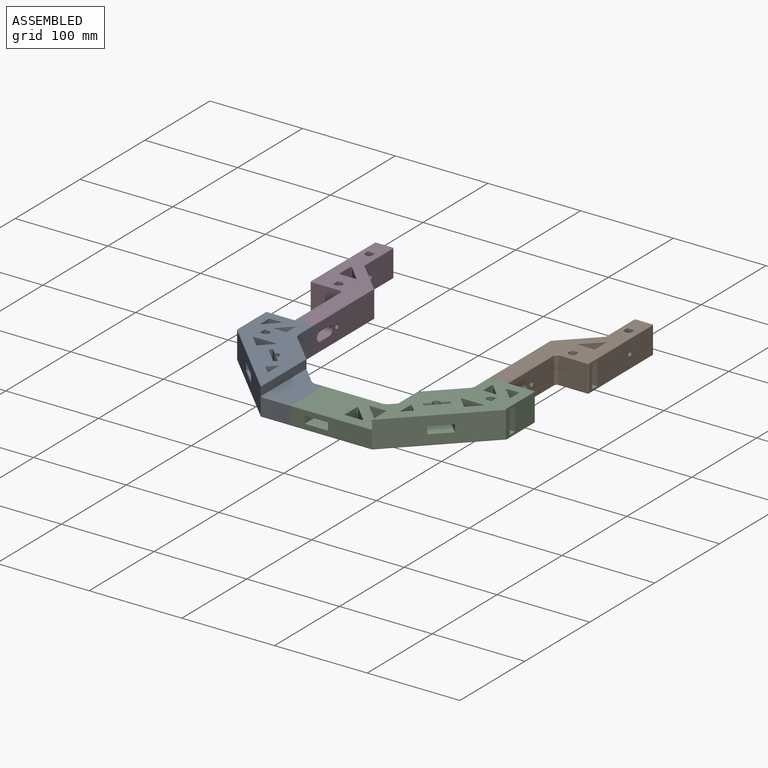
[diagram: assembled view]
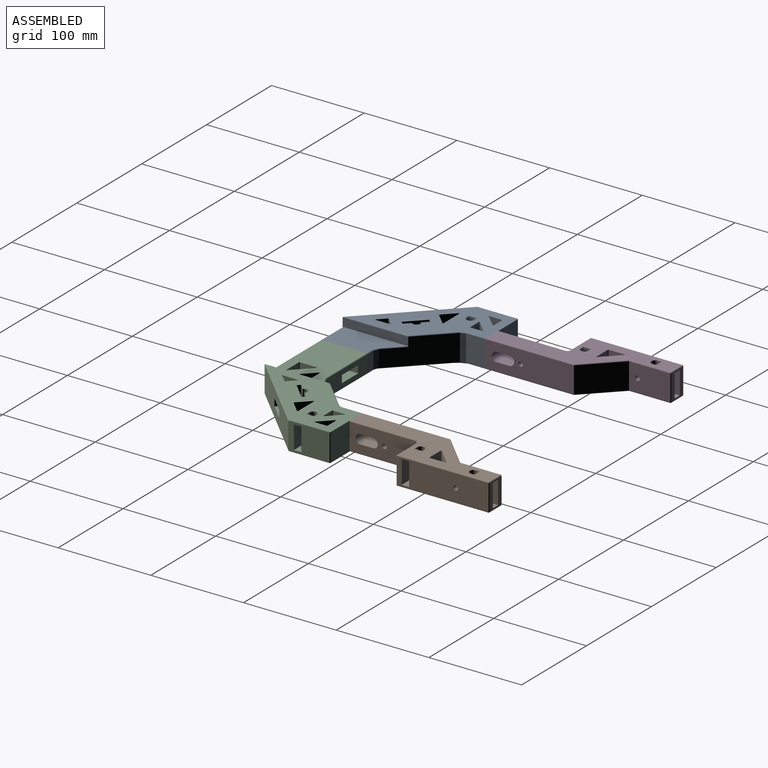
[diagram: assembled view, second angle]
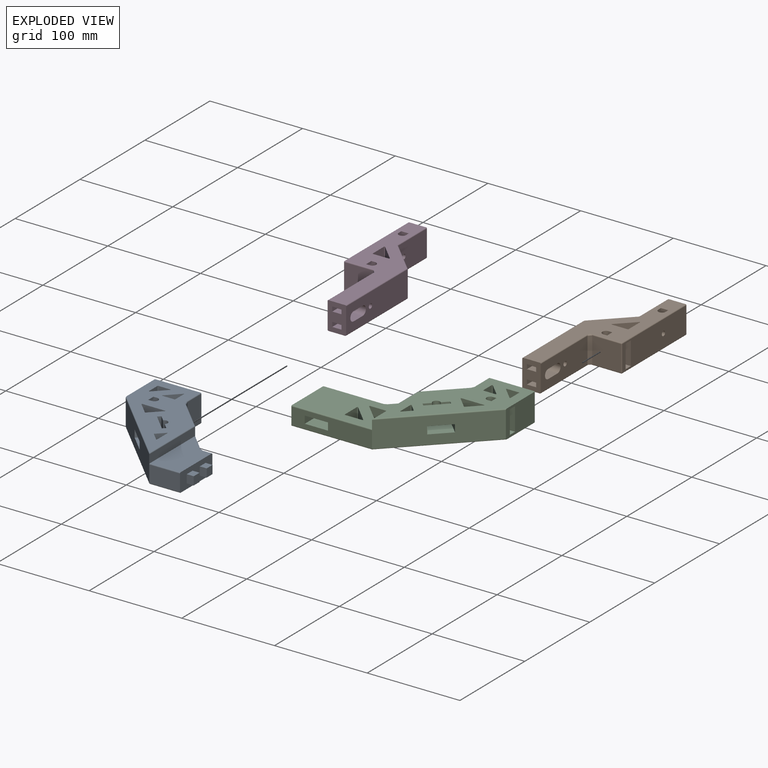
[diagram: exploded view]
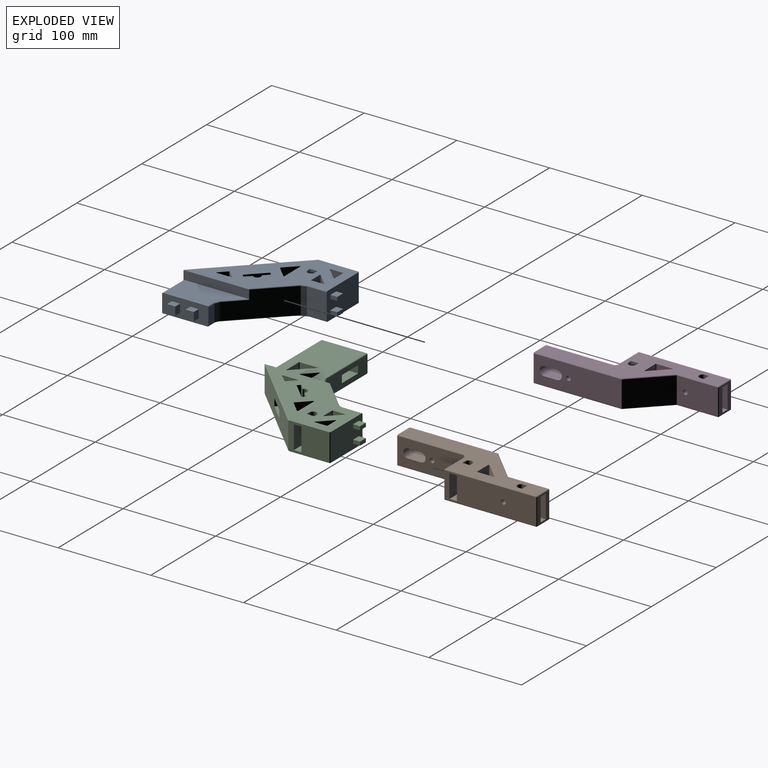
[diagram: exploded view, second angle]
ASSEMBLY  parts=4 mates=3
PART A: 91 faces, bbox 126.6x138x41.1 mm
  f0: plane 50x20mm, normal (1,0,0), area 837.1mm2, adj f1,f2,f3,f4,f5,f6,f7,f23
  f1: plane 129.12x118.06mm, normal (0,0,-1), area 7108.4mm2, adj f0,f4,f6,f9,f19,f34,f35,f43
  f2: plane 18x9.35mm, normal (0,1,0), area 168.3mm2, adj f0,f4,f5,f48
  f3: plane 33.06x18mm, normal (0,-1,0), area 595.1mm2, adj f0,f6,f7,f20
  f4: cylinder r=1mm len=12.76mm, axis (1,0,0), area 16.6mm2, adj f0,f1,f2,f47
  f5: cylinder r=1mm len=12.76mm, axis (1,0,0), area 16.6mm2, adj f0,f2,f23,f49
  f6: cylinder r=1mm len=33.06mm, axis (-1,0,0), area 51.6mm2, adj f0,f1,f3,f43
  f7: cylinder r=1mm len=33.06mm, axis (-1,0,0), area 51.9mm2, adj f0,f3,f22,f23
  f8: plane 127.65x83.94mm, normal (0,0,1), area 5047.2mm2, adj f9,f12,f14,f15,f17,f19,f34,f36
  f9: plane 49x30mm, normal (0,1,0), area 1397.6mm2, adj f1,f8,f10,f24,f25,f26,f27,f29
  f10: plane 28x21.41mm, normal (1,0,0), area 599.5mm2, adj f9,f36,f45,f68
  f11: plane 20x8mm, normal (0,0,-1), area 160mm2, adj f12,f14,f19,f62
  f12: plane 27.5x24mm, normal (0,1,0), area 610mm2, adj f8,f11,f13,f19,f62,f63
  f13: plane 28x8mm, normal (0,0,1), area 217.1mm2, adj f12,f14,f19,f63
  f14: plane 27.5x24mm, normal (0,-1,0), area 610mm2, adj f8,f11,f13,f19,f62,f63
  f15: plane 19x16.97mm, normal (-0.71,0.71,0), area 236mm2, adj f8,f16,f18,f20,f64,f67
  f16: plane 34.65x34.65mm, normal (0,0,1), area 625.1mm2, adj f15,f17,f20,f65,f66,f67
  f17: plane 19x16.97mm, normal (0.71,-0.71,0), area 236mm2, adj f8,f16,f18,f20,f64,f65
  f18: plane 31.82x31.82mm, normal (0,0,-1), area 500mm2, adj f15,f17,f20,f64
  f19: plane 44.54x30.42mm, normal (-1,0,0), area 1123.1mm2, adj f1,f8,f11,f12,f13,f14,f20,f34
  f20: plane 84.94x84.94mm, normal (-0.71,-0.71,0), area 3163.4mm2, adj f3,f15,f16,f17,f18,f19,f22,f37
  f21: plane 51.41x51.41mm, normal (0.71,0.71,0), area 1768.6mm2, adj f35,f38,f41,f42,f45,f48
  f22: plane 70.36x10.06mm, normal (1,0,0), area 633mm2, adj f7,f20,f23,f39,f41,f42
  f23: plane 68.3x33.06mm, normal (0,0,1), area 1792.9mm2, adj f0,f5,f7,f22,f42
  f24: plane 9x7.5mm, normal (0,0,1), area 67.5mm2, adj f9,f25,f27,f28
  f25: plane 7.5x4mm, normal (-1,0,0), area 30mm2, adj f9,f24,f26,f28
  f26: plane 9x7.5mm, normal (0,0,-1), area 67.5mm2, adj f9,f25,f27,f28
  f27: plane 7.5x4mm, normal (1,0,0), area 30mm2, adj f9,f24,f26,f28
  f28: plane 9x4mm, normal (0,1,0), area 36mm2, adj f24,f25,f26,f27
  f29: plane 9x7.5mm, normal (0,0,1), area 67.5mm2, adj f9,f30,f32,f33
  f30: plane 7.5x4mm, normal (-1,0,0), area 30mm2, adj f9,f29,f31,f33
  f31: plane 9x7.5mm, normal (0,0,-1), area 67.5mm2, adj f9,f30,f32,f33
  f32: plane 7.5x4mm, normal (1,0,0), area 30mm2, adj f9,f29,f31,f33
  f33: plane 9x4mm, normal (0,1,0), area 36mm2, adj f29,f30,f31,f32
  f34: cylinder r=1mm len=30mm, axis (0,0,-1), area 47.1mm2, adj f1,f8,f9,f19
  f35: cylinder r=1mm len=54.53mm, axis (0.71,-0.71,0), area 110.4mm2, adj f1,f21,f44,f47
  f36: cylinder r=1mm len=24.83mm, axis (0,1,0), area 35.6mm2, adj f8,f9,f10,f46
  f37: cylinder r=1mm len=86.35mm, axis (0.71,-0.71,0), area 187.6mm2, adj f8,f19,f20,f39
  f38: cylinder r=1mm len=35.65mm, axis (-0.71,0.71,0), area 74.2mm2, adj f8,f21,f40,f46
  f39: cylinder r=1mm len=70.3mm, axis (0,-1,0), area 108.5mm2, adj f8,f22,f37,f40
  f40: sphere r=1mm, area 0.8mm2, adj f38,f39,f41
  f41: cylinder r=1mm len=10mm, axis (0,0,-1), area 7.6mm2, adj f21,f22,f40,f42
  f42: cylinder r=1mm len=22mm, axis (0.71,-0.71,0), area 42.8mm2, adj f21,f22,f23,f41,f49
  f43: cylinder r=1mm len=86.35mm, axis (-0.71,0.71,0), area 189.1mm2, adj f1,f6,f19,f20
  f44: bspline ~15.15x11.72mm, area 8.8mm2, adj f1,f35,f45,f68
  f45: plane 28x5.12mm, normal (0.92,0.38,0), area 155.2mm2, adj f10,f21,f44,f46
  f46: bspline ~5.13x3.12mm, area 8.2mm2, adj f36,f38,f45
  f47: bspline ~5.13x3.12mm, area 8.2mm2, adj f4,f35,f48
  f48: plane 18x5.12mm, normal (0.38,0.92,0), area 99.8mm2, adj f2,f21,f47,f49
  f49: bspline ~5.13x3.12mm, area 8.2mm2, adj f5,f42,f48
  f50: plane 30x25.08mm, normal (0,-1,0), area 752.4mm2, adj f1,f8,f86,f90
  f51: plane 30x12.54mm, normal (-0.71,0.71,0), area 532mm2, adj f1,f8,f88,f90
  f52: plane 30x12.54mm, normal (0.71,0.71,0), area 532mm2, adj f1,f8,f86,f88
  f53: plane 30x13.44mm, normal (-1,0,0), area 403.3mm2, adj f1,f8,f79,f83
  f54: plane 30x13.44mm, normal (0,1,0), area 403.3mm2, adj f1,f8,f83,f84
  f55: plane 30x13.44mm, normal (0.71,-0.71,0), area 570.4mm2, adj f1,f8,f79,f84
  f56: plane 30x13.41mm, normal (0,-1,0), area 402.3mm2, adj f1,f8,f81,f82
  f57: plane 30x13.41mm, normal (-0.71,0.71,0), area 569mm2, adj f1,f8,f80,f82
  f58: plane 30x13.41mm, normal (1,0,0), area 402.3mm2, adj f1,f8,f80,f81
  f59: plane 30x16.31mm, normal (-1,0,0), area 489.2mm2, adj f1,f8,f85,f89
  f60: plane 30x8.15mm, normal (0.71,0.71,0), area 345.9mm2, adj f1,f8,f87,f89
  f61: plane 30x8.15mm, normal (0.71,-0.71,0), area 345.9mm2, adj f1,f8,f85,f87
  f62: plane 8x2.5mm, normal (1,0,0), area 20mm2, adj f8,f11,f12,f14
  f63: cylinder r=4mm len=27.5mm, axis (0,0,1), area 345.6mm2, adj f8,f12,f13,f14
  f64: plane 17.68x17.68mm, normal (0.71,0.71,0), area 275mm2, adj f8,f15,f17,f18
  f65: plane 19x6.01mm, normal (-0.71,-0.71,0), area 161.5mm2, adj f8,f16,f17,f66
  f66: cylinder r=4mm len=19mm, axis (0,0,1), area 238.8mm2, adj f8,f16,f65,f67
  f67: plane 19x6.01mm, normal (-0.71,-0.71,0), area 161.5mm2, adj f8,f15,f16,f66
  f68: cylinder r=1mm len=21.41mm, axis (0,-1,0), area 31.8mm2, adj f1,f9,f10,f44
  f69: plane 9x7.5mm, normal (0,0,1), area 67.5mm2, adj f0,f70,f72,f73
  f70: plane 9x7.5mm, normal (0,-1,0), area 67.5mm2, adj f0,f69,f71,f73
  f71: plane 9x7.5mm, normal (0,0,-1), area 67.5mm2, adj f0,f70,f72,f73
  f72: plane 9x7.5mm, normal (0,1,0), area 67.5mm2, adj f0,f69,f71,f73
  f73: plane 9x9mm, normal (1,0,0), area 81mm2, adj f69,f70,f71,f72
  f74: plane 9x7.5mm, normal (0,0,1), area 67.5mm2, adj f0,f75,f77,f78
  f75: plane 9x7.5mm, normal (0,-1,0), area 67.5mm2, adj f0,f74,f76,f78
  f76: plane 9x7.5mm, normal (0,0,-1), area 67.5mm2, adj f0,f75,f77,f78
  f77: plane 9x7.5mm, normal (0,1,0), area 67.5mm2, adj f0,f74,f76,f78
  f78: plane 9x9mm, normal (1,0,0), area 81mm2, adj f74,f75,f76,f77
  f79: plane 30x0.71mm, normal (-0.38,-0.92,0), area 23mm2, adj f1,f8,f53,f55
  f80: plane 30x0.71mm, normal (0.38,0.92,0), area 23mm2, adj f1,f8,f57,f58
  f81: plane 30x0.41mm, normal (0.71,-0.71,0), area 17.6mm2, adj f1,f8,f56,f58
  f82: plane 30x0.71mm, normal (-0.92,-0.38,0), area 23mm2, adj f1,f8,f56,f57
  f83: plane 30x0.41mm, normal (-0.71,0.71,0), area 17.6mm2, adj f1,f8,f53,f54
  f84: plane 30x0.71mm, normal (0.92,0.38,0), area 23mm2, adj f1,f8,f54,f55
  f85: plane 30x0.71mm, normal (-0.38,-0.92,0), area 23mm2, adj f1,f8,f59,f61
  f86: plane 30x0.71mm, normal (0.92,-0.38,0), area 23mm2, adj f1,f8,f50,f52
  f87: plane 30x0.59mm, normal (1,0,0), area 17.6mm2, adj f1,f8,f60,f61
  f88: plane 30x0.59mm, normal (0,1,0), area 17.6mm2, adj f1,f8,f51,f52
  f89: plane 30x0.71mm, normal (-0.38,0.92,0), area 23mm2, adj f1,f8,f59,f60
  f90: plane 30x0.71mm, normal (-0.92,-0.38,0), area 23mm2, adj f1,f8,f50,f51
PART B: 73 faces, bbox 55x175x30 mm
  f0: plane 28x18mm, normal (0,1,0), area 304mm2, adj f29,f31,f39,f40,f41,f42,f48,f60
  f1: plane 98.22x28mm, normal (1,0,0), area 2530.4mm2, adj f30,f31,f32,f33,f34,f35,f38,f50
  f2: plane 30x20mm, normal (0,-1,0), area 499.1mm2, adj f3,f4,f5,f6,f12,f13,f14,f15
  f3: plane 71.92x28mm, normal (1,0,0), area 1775.6mm2, adj f2,f7,f8,f9,f10,f11,f52,f54
  f4: plane 94.59x28mm, normal (-1,0,0), area 2410.2mm2, adj f2,f7,f8,f9,f10,f11,f28,f43
  f5: plane 174x53mm, normal (0,0,1), area 4103mm2, adj f2,f25,f26,f27,f33,f35,f36,f37
  f6: plane 174x53mm, normal (0,0,-1), area 4217.3mm2, adj f2,f25,f26,f27,f54,f55,f57,f59
  f7: cylinder r=5mm len=20mm, axis (1,0,0), area 314.2mm2, adj f3,f4,f8,f10
  f8: plane 20x14mm, normal (0,0,-1), area 280mm2, adj f3,f4,f7,f9
  f9: cylinder r=5mm len=20mm, axis (1,0,0), area 314.2mm2, adj f3,f4,f8,f10
  f10: plane 20x14mm, normal (0,0,1), area 280mm2, adj f3,f4,f7,f9
  f11: cylinder r=2.5mm len=20mm, axis (1,0,0), area 314.2mm2, adj f3,f4
  f12: plane 10x8mm, normal (0,0,-1), area 80mm2, adj f2,f13,f15,f16
  f13: plane 8x5mm, normal (-1,0,0), area 40mm2, adj f2,f12,f14,f16
  f14: plane 10x8mm, normal (0,0,1), area 80mm2, adj f2,f13,f15,f16
  f15: plane 8x5mm, normal (1,0,0), area 40mm2, adj f2,f12,f14,f16
  f16: plane 10x5mm, normal (0,-1,0), area 50mm2, adj f12,f13,f14,f15
  f17: plane 10x8mm, normal (0,0,-1), area 80mm2, adj f2,f18,f20,f21
  f18: plane 8x5mm, normal (-1,0,0), area 40mm2, adj f2,f17,f19,f21
  f19: plane 10x8mm, normal (0,0,1), area 80mm2, adj f2,f18,f20,f21
  f20: plane 8x5mm, normal (1,0,0), area 40mm2, adj f2,f17,f19,f21
  f21: plane 10x5mm, normal (0,-1,0), area 50mm2, adj f17,f18,f19,f20
  f22: plane 44x28mm, normal (-1,0,0), area 1212.4mm2, adj f24,f29,f38,f46,f64
  f23: plane 31x28mm, normal (0,-1,0), area 867.9mm2, adj f30,f53,f55,f66
  f24: plane 34.71x34.71mm, normal (-0.71,0.71,0), area 1374.3mm2, adj f22,f28,f45,f63
  f25: plane 30x17.71mm, normal (0.71,-0.71,0), area 751.2mm2, adj f5,f6,f70,f72
  f26: plane 30x17.78mm, normal (-1,0,0), area 533.3mm2, adj f5,f6,f70,f71
  f27: plane 30x17.71mm, normal (0,1,0), area 531.2mm2, adj f5,f6,f71,f72
  f28: cylinder r=1mm len=28mm, axis (0,0,1), area 22mm2, adj f4,f24,f44,f61
  f29: cylinder r=1mm len=28mm, axis (0,0,-1), area 44mm2, adj f0,f22,f47,f62
  f30: cylinder r=1mm len=28mm, axis (0,0,-1), area 44.1mm2, adj f1,f23,f51,f56
  f31: cylinder r=1mm len=28mm, axis (0,0,1), area 44mm2, adj f0,f1,f49,f58
  f32: plane 20x8mm, normal (0,0,-1), area 160mm2, adj f1,f33,f35,f36
  f33: plane 27.5x24mm, normal (0,-1,0), area 610mm2, adj f1,f5,f32,f34,f36,f37
  f34: plane 28x8mm, normal (0,0,1), area 217.1mm2, adj f1,f33,f35,f37
  f35: plane 27.5x24mm, normal (0,1,0), area 610mm2, adj f1,f5,f32,f34,f36,f37
  f36: plane 8x2.5mm, normal (-1,0,0), area 20mm2, adj f5,f32,f33,f35
  f37: cylinder r=4mm len=27.5mm, axis (0,0,1), area 345.6mm2, adj f5,f33,f34,f35
  f38: cylinder r=2.5mm len=20mm, axis (1,0,0), area 314.2mm2, adj f1,f22
  f39: plane 20x8mm, normal (0,0,-1), area 160mm2, adj f0,f40,f42,f68
  f40: plane 27.5x24mm, normal (1,0,0), area 610mm2, adj f0,f5,f39,f41,f68,f69
  f41: plane 28x8mm, normal (0,0,1), area 217.1mm2, adj f0,f40,f42,f69
  f42: plane 27.5x24mm, normal (-1,0,0), area 610mm2, adj f0,f5,f39,f41,f68,f69
  f43: cylinder r=1mm len=94.59mm, axis (0,-1,0), area 148.6mm2, adj f2,f4,f5,f44
  f44: sphere r=1mm, area 0.8mm2, adj f28,f43,f45
  f45: cylinder r=1mm len=35.71mm, axis (0.71,0.71,0), area 77.4mm2, adj f5,f24,f44,f46
  f46: cylinder r=1mm len=44.41mm, axis (0,1,0), area 69.4mm2, adj f5,f22,f45,f47
  f47: sphere r=1mm, area 1.6mm2, adj f29,f46,f48
  f48: cylinder r=1mm len=18mm, axis (1,0,0), area 28.3mm2, adj f0,f5,f47,f49
  f49: sphere r=1mm, area 1.6mm2, adj f31,f48,f50
  f50: cylinder r=1mm len=98.22mm, axis (0,-1,0), area 154.3mm2, adj f1,f5,f49,f51
  f51: sphere r=1mm, area 2.1mm2, adj f30,f50,f53
  f52: cylinder r=1mm len=75.92mm, axis (0,-1,0), area 115.3mm2, adj f2,f3,f5,f65
  f53: cylinder r=1mm len=35mm, axis (-1,0,0), area 51mm2, adj f5,f23,f51,f65
  f54: cylinder r=1mm len=75.92mm, axis (0,-1,0), area 115.3mm2, adj f2,f3,f6,f67
  f55: cylinder r=1mm len=35mm, axis (-1,0,0), area 51mm2, adj f6,f23,f56,f67
  f56: sphere r=1mm, area 2.1mm2, adj f30,f55,f57
  f57: cylinder r=1mm len=98.22mm, axis (0,-1,0), area 154.3mm2, adj f1,f6,f56,f58
  f58: sphere r=1mm, area 1.6mm2, adj f31,f57,f60
  f59: cylinder r=1mm len=94.59mm, axis (0,1,0), area 148.6mm2, adj f2,f4,f6,f61
  f60: cylinder r=1mm len=18mm, axis (1,0,0), area 28.3mm2, adj f0,f6,f58,f62
  f61: sphere r=1mm, area 0.8mm2, adj f28,f59,f63
  f62: sphere r=1mm, area 1.6mm2, adj f29,f60,f64
  f63: cylinder r=1mm len=35.71mm, axis (0.71,0.71,0), area 77.4mm2, adj f6,f24,f61,f64
  f64: cylinder r=1mm len=44.41mm, axis (0,1,0), area 69.4mm2, adj f6,f22,f62,f63
  f65: bspline ~4.01x4mm, area 4.7mm2, adj f52,f53,f66
  f66: plane 28x3mm, normal (0.71,-0.71,0), area 118.6mm2, adj f3,f23,f65,f67
  f67: bspline ~4.01x4mm, area 4.7mm2, adj f54,f55,f66
  f68: plane 8x2.5mm, normal (0,-1,0), area 20mm2, adj f5,f39,f40,f42
  f69: cylinder r=4mm len=27.5mm, axis (0,0,1), area 345.6mm2, adj f5,f40,f41,f42
  f70: plane 30x0.71mm, normal (-0.38,-0.92,0), area 23.1mm2, adj f5,f6,f25,f26
  f71: plane 30x0.42mm, normal (-0.71,0.71,0), area 17.7mm2, adj f5,f6,f26,f27
  f72: plane 30x0.71mm, normal (0.92,0.38,0), area 23.1mm2, adj f5,f6,f25,f27
PART C: 107 faces, bbox 173.1x138x41 mm
  f0: plane 172.06x129.12mm, normal (0,0,-1), area 9276mm2, adj f2,f6,f8,f10,f20,f38,f39,f47
  f1: plane 87.06x68.3mm, normal (0,0,1), area 3957.6mm2, adj f2,f7,f9,f23,f46,f83,f84,f85
  f2: plane 50x20mm, normal (-1,0,0), area 799.1mm2, adj f0,f1,f4,f5,f6,f7,f8,f9
  f3: plane 127.65x83.94mm, normal (0,0,1), area 5047.2mm2, adj f10,f13,f15,f16,f18,f20,f38,f40
  f4: plane 63.35x18mm, normal (0,1,0), area 940.3mm2, adj f2,f6,f7,f24,f25,f26,f27,f52
  f5: plane 87.06x18mm, normal (0,-1,0), area 1367.1mm2, adj f2,f8,f9,f21,f24,f25,f26,f27
  f6: cylinder r=1mm len=66.76mm, axis (-1,0,0), area 101.5mm2, adj f0,f2,f4,f51
  f7: cylinder r=1mm len=66.76mm, axis (-1,0,0), area 101.5mm2, adj f1,f2,f4,f53
  f8: cylinder r=1mm len=87.06mm, axis (1,0,0), area 136.4mm2, adj f0,f2,f5,f47
  f9: cylinder r=1mm len=87.06mm, axis (1,0,0), area 136.8mm2, adj f1,f2,f5,f23
  f10: plane 49x30mm, normal (0,1,0), area 1397.6mm2, adj f0,f3,f11,f28,f29,f30,f31,f33
  f11: plane 28x21.41mm, normal (-1,0,0), area 599.5mm2, adj f10,f40,f49,f72
  f12: plane 20x8mm, normal (0,0,-1), area 160mm2, adj f13,f15,f20,f66
  f13: plane 27.5x24mm, normal (0,1,0), area 610mm2, adj f3,f12,f14,f20,f66,f67
  f14: plane 28x8mm, normal (0,0,1), area 217.1mm2, adj f13,f15,f20,f67
  f15: plane 27.5x24mm, normal (0,-1,0), area 610mm2, adj f3,f12,f14,f20,f66,f67
  f16: plane 19x16.97mm, normal (0.71,0.71,0), area 236mm2, adj f3,f17,f19,f21,f68,f71
  f17: plane 34.65x34.65mm, normal (0,0,1), area 625.1mm2, adj f16,f18,f21,f69,f70,f71
  f18: plane 19x16.97mm, normal (-0.71,-0.71,0), area 236mm2, adj f3,f17,f19,f21,f68,f69
  f19: plane 31.82x31.82mm, normal (0,0,-1), area 500mm2, adj f16,f18,f21,f68
  f20: plane 44.54x30.42mm, normal (1,0,0), area 1123.1mm2, adj f0,f3,f12,f13,f14,f15,f21,f38
  f21: plane 84.94x84.94mm, normal (0.71,-0.71,0), area 3163.4mm2, adj f5,f16,f17,f18,f19,f20,f23,f41
  f22: plane 51.41x51.41mm, normal (-0.71,0.71,0), area 1768.6mm2, adj f39,f42,f45,f46,f49,f52
  f23: plane 70.36x10.06mm, normal (-1,0,0), area 633mm2, adj f1,f9,f21,f43,f45,f46
  f24: plane 50x8mm, normal (-1,0,0), area 400mm2, adj f4,f5,f25,f26
  f25: plane 50x25mm, normal (0,0,-1), area 1250mm2, adj f4,f5,f24,f27
  f26: plane 50x25mm, normal (0,0,1), area 1250mm2, adj f4,f5,f24,f27
  f27: plane 50x8mm, normal (1,0,0), area 400mm2, adj f4,f5,f25,f26
  f28: plane 9x7.5mm, normal (0,0,1), area 67.5mm2, adj f10,f29,f31,f32
  f29: plane 7.5x4mm, normal (1,0,0), area 30mm2, adj f10,f28,f30,f32
  f30: plane 9x7.5mm, normal (0,0,-1), area 67.5mm2, adj f10,f29,f31,f32
  f31: plane 7.5x4mm, normal (-1,0,0), area 30mm2, adj f10,f28,f30,f32
  f32: plane 9x4mm, normal (0,1,0), area 36mm2, adj f28,f29,f30,f31
  f33: plane 9x7.5mm, normal (0,0,1), area 67.5mm2, adj f10,f34,f36,f37
  f34: plane 7.5x4mm, normal (1,0,0), area 30mm2, adj f10,f33,f35,f37
  f35: plane 9x7.5mm, normal (0,0,-1), area 67.5mm2, adj f10,f34,f36,f37
  f36: plane 7.5x4mm, normal (-1,0,0), area 30mm2, adj f10,f33,f35,f37
  f37: plane 9x4mm, normal (0,1,0), area 36mm2, adj f33,f34,f35,f36
  f38: cylinder r=1mm len=30mm, axis (0,0,-1), area 47.1mm2, adj f0,f3,f10,f20
  f39: cylinder r=1mm len=54.53mm, axis (-0.71,-0.71,0), area 110.4mm2, adj f0,f22,f48,f51
  f40: cylinder r=1mm len=24.83mm, axis (0,1,0), area 35.6mm2, adj f3,f10,f11,f50
  f41: cylinder r=1mm len=86.35mm, axis (-0.71,-0.71,0), area 187.6mm2, adj f3,f20,f21,f43
  f42: cylinder r=1mm len=35.65mm, axis (0.71,0.71,0), area 74.2mm2, adj f3,f22,f44,f50
  f43: cylinder r=1mm len=70.3mm, axis (0,-1,0), area 108.5mm2, adj f3,f23,f41,f44
  f44: sphere r=1mm, area 0.8mm2, adj f42,f43,f45
  f45: cylinder r=1mm len=10mm, axis (0,0,-1), area 7.6mm2, adj f22,f23,f44,f46
  f46: cylinder r=1mm len=22mm, axis (-0.71,-0.71,0), area 42.8mm2, adj f1,f22,f23,f45,f53
  f47: cylinder r=1mm len=86.35mm, axis (0.71,0.71,0), area 189.1mm2, adj f0,f8,f20,f21
  f48: bspline ~14.05x11.63mm, area 8.8mm2, adj f0,f39,f49,f72
  f49: plane 28x5.12mm, normal (-0.92,0.38,0), area 155.2mm2, adj f11,f22,f48,f50
  f50: bspline ~5.13x3.12mm, area 8.2mm2, adj f40,f42,f49
  f51: bspline ~5.13x3.12mm, area 8.2mm2, adj f6,f39,f52
  f52: plane 18x5.12mm, normal (-0.38,0.92,0), area 99.8mm2, adj f4,f22,f51,f53
  f53: bspline ~5.13x3.12mm, area 8.2mm2, adj f7,f46,f52
  f54: plane 30x25.08mm, normal (0,-1,0), area 752.4mm2, adj f0,f3,f96,f101
  f55: plane 30x12.54mm, normal (0.71,0.71,0), area 532mm2, adj f0,f3,f96,f98
  f56: plane 30x12.54mm, normal (-0.71,0.71,0), area 532mm2, adj f0,f3,f98,f101
  f57: plane 30x13.44mm, normal (1,0,0), area 403.3mm2, adj f0,f3,f90,f92
  f58: plane 30x13.44mm, normal (0,1,0), area 403.3mm2, adj f0,f3,f89,f92
  f59: plane 30x13.44mm, normal (-0.71,-0.71,0), area 570.4mm2, adj f0,f3,f89,f90
  f60: plane 30x13.41mm, normal (0,-1,0), area 402.3mm2, adj f0,f3,f91,f94
  f61: plane 30x13.41mm, normal (0.71,0.71,0), area 569mm2, adj f0,f3,f91,f93
  f62: plane 30x13.41mm, normal (-1,0,0), area 402.3mm2, adj f0,f3,f93,f94
  f63: plane 30x16.31mm, normal (1,0,0), area 489.2mm2, adj f0,f3,f95,f102
  f64: plane 30x8.15mm, normal (-0.71,0.71,0), area 345.9mm2, adj f0,f3,f95,f97
  f65: plane 30x8.15mm, normal (-0.71,-0.71,0), area 345.9mm2, adj f0,f3,f97,f102
  f66: plane 8x2.5mm, normal (-1,0,0), area 20mm2, adj f3,f12,f13,f15
  f67: cylinder r=4mm len=27.5mm, axis (0,0,1), area 345.6mm2, adj f3,f13,f14,f15
  f68: plane 17.68x17.68mm, normal (-0.71,0.71,0), area 275mm2, adj f3,f16,f18,f19
  f69: plane 19x6.01mm, normal (0.71,-0.71,0), area 161.5mm2, adj f3,f17,f18,f70
  f70: cylinder r=4mm len=19mm, axis (0,0,1), area 238.8mm2, adj f3,f17,f69,f71
  f71: plane 19x6.01mm, normal (0.71,-0.71,0), area 161.5mm2, adj f3,f16,f17,f70
  f72: cylinder r=1mm len=21.41mm, axis (0,-1,0), area 31.8mm2, adj f0,f10,f11,f48
  f73: plane 10x8mm, normal (0,0,-1), area 80mm2, adj f2,f74,f76,f77
  f74: plane 10x8mm, normal (0,-1,0), area 80mm2, adj f2,f73,f75,f77
  f75: plane 10x8mm, normal (0,0,1), area 80mm2, adj f2,f74,f76,f77
  f76: plane 10x8mm, normal (0,1,0), area 80mm2, adj f2,f73,f75,f77
  f77: plane 10x10mm, normal (-1,0,0), area 100mm2, adj f73,f74,f75,f76
  f78: plane 10x8mm, normal (0,0,-1), area 80mm2, adj f2,f79,f81,f82
  f79: plane 10x8mm, normal (0,-1,0), area 80mm2, adj f2,f78,f80,f82
  f80: plane 10x8mm, normal (0,0,1), area 80mm2, adj f2,f79,f81,f82
  f81: plane 10x8mm, normal (0,1,0), area 80mm2, adj f2,f78,f80,f82
  f82: plane 10x10mm, normal (-1,0,0), area 100mm2, adj f78,f79,f80,f81
  f83: plane 20x19.3mm, normal (0,-1,0), area 385.9mm2, adj f0,f1,f105,f106
  f84: plane 20x19.3mm, normal (0.71,0.71,0), area 545.8mm2, adj f0,f1,f99,f106
  f85: plane 20x19.3mm, normal (-1,0,0), area 385.9mm2, adj f0,f1,f99,f105
  f86: plane 20x19.3mm, normal (1,0,0), area 385.9mm2, adj f0,f1,f103,f104
  f87: plane 20x19.3mm, normal (0,1,0), area 385.9mm2, adj f0,f1,f100,f104
  f88: plane 20x19.3mm, normal (-0.71,-0.71,0), area 545.8mm2, adj f0,f1,f100,f103
  f89: plane 30x0.71mm, normal (-0.92,0.38,0), area 23mm2, adj f0,f3,f58,f59
  f90: plane 30x0.71mm, normal (0.38,-0.92,0), area 23mm2, adj f0,f3,f57,f59
  f91: plane 30x0.71mm, normal (0.92,-0.38,0), area 23mm2, adj f0,f3,f60,f61
  f92: plane 30x0.41mm, normal (0.71,0.71,0), area 17.6mm2, adj f0,f3,f57,f58
  f93: plane 30x0.71mm, normal (-0.38,0.92,0), area 23mm2, adj f0,f3,f61,f62
  f94: plane 30x0.41mm, normal (-0.71,-0.71,0), area 17.6mm2, adj f0,f3,f60,f62
  f95: plane 30x0.71mm, normal (0.38,0.92,0), area 23mm2, adj f0,f3,f63,f64
  f96: plane 30x0.71mm, normal (0.92,-0.38,0), area 23mm2, adj f0,f3,f54,f55
  f97: plane 30x0.59mm, normal (-1,0,0), area 17.6mm2, adj f0,f3,f64,f65
  f98: plane 30x0.59mm, normal (0,1,0), area 17.6mm2, adj f0,f3,f55,f56
  f99: plane 20x0.71mm, normal (-0.38,0.92,0), area 15.3mm2, adj f0,f1,f84,f85
  f100: plane 20x0.71mm, normal (-0.92,0.38,0), area 15.3mm2, adj f0,f1,f87,f88
  f101: plane 30x0.71mm, normal (-0.92,-0.38,0), area 23mm2, adj f0,f3,f54,f56
  f102: plane 30x0.71mm, normal (0.38,-0.92,0), area 23mm2, adj f0,f3,f63,f65
  f103: plane 20x0.71mm, normal (0.38,-0.92,0), area 15.3mm2, adj f0,f1,f86,f88
  f104: plane 20x0.41mm, normal (0.71,0.71,0), area 11.7mm2, adj f0,f1,f86,f87
  f105: plane 20x0.41mm, normal (-0.71,-0.71,0), area 11.7mm2, adj f0,f1,f83,f85
  f106: plane 20x0.71mm, normal (0.92,-0.38,0), area 15.3mm2, adj f0,f1,f83,f84
PART D: 73 faces, bbox 55x175x30 mm
  f0: plane 28x18mm, normal (0,1,0), area 304mm2, adj f29,f31,f39,f40,f41,f42,f48,f60
  f1: plane 98.22x28mm, normal (-1,0,0), area 2530.4mm2, adj f30,f31,f32,f33,f34,f35,f38,f50
  f2: plane 30x20mm, normal (0,-1,0), area 499.1mm2, adj f3,f4,f5,f6,f12,f13,f14,f15
  f3: plane 71.92x28mm, normal (-1,0,0), area 1775.6mm2, adj f2,f7,f8,f9,f10,f11,f52,f54
  f4: plane 94.59x28mm, normal (1,0,0), area 2410.2mm2, adj f2,f7,f8,f9,f10,f11,f28,f43
  f5: plane 174x53mm, normal (0,0,1), area 4103mm2, adj f2,f25,f26,f27,f33,f35,f36,f37
  f6: plane 174x53mm, normal (0,0,-1), area 4217.3mm2, adj f2,f25,f26,f27,f54,f55,f57,f59
  f7: cylinder r=5mm len=20mm, axis (-1,0,0), area 314.2mm2, adj f3,f4,f8,f10
  f8: plane 20x14mm, normal (0,0,-1), area 280mm2, adj f3,f4,f7,f9
  f9: cylinder r=5mm len=20mm, axis (-1,0,0), area 314.2mm2, adj f3,f4,f8,f10
  f10: plane 20x14mm, normal (0,0,1), area 280mm2, adj f3,f4,f7,f9
  f11: cylinder r=2.5mm len=20mm, axis (-1,0,0), area 314.2mm2, adj f3,f4
  f12: plane 10x8mm, normal (0,0,-1), area 80mm2, adj f2,f13,f15,f16
  f13: plane 8x5mm, normal (1,0,0), area 40mm2, adj f2,f12,f14,f16
  f14: plane 10x8mm, normal (0,0,1), area 80mm2, adj f2,f13,f15,f16
  f15: plane 8x5mm, normal (-1,0,0), area 40mm2, adj f2,f12,f14,f16
  f16: plane 10x5mm, normal (0,-1,0), area 50mm2, adj f12,f13,f14,f15
  f17: plane 10x8mm, normal (0,0,-1), area 80mm2, adj f2,f18,f20,f21
  f18: plane 8x5mm, normal (1,0,0), area 40mm2, adj f2,f17,f19,f21
  f19: plane 10x8mm, normal (0,0,1), area 80mm2, adj f2,f18,f20,f21
  f20: plane 8x5mm, normal (-1,0,0), area 40mm2, adj f2,f17,f19,f21
  f21: plane 10x5mm, normal (0,-1,0), area 50mm2, adj f17,f18,f19,f20
  f22: plane 44x28mm, normal (1,0,0), area 1212.4mm2, adj f24,f29,f38,f46,f64
  f23: plane 31x28mm, normal (0,-1,0), area 867.9mm2, adj f30,f53,f55,f66
  f24: plane 34.71x34.71mm, normal (0.71,0.71,0), area 1374.3mm2, adj f22,f28,f45,f63
  f25: plane 30x17.71mm, normal (-0.71,-0.71,0), area 751.6mm2, adj f5,f6,f70,f72
  f26: plane 30x17.79mm, normal (1,0,0), area 533.6mm2, adj f5,f6,f71,f72
  f27: plane 30x17.71mm, normal (0,1,0), area 531.4mm2, adj f5,f6,f70,f71
  f28: cylinder r=1mm len=28mm, axis (0,0,1), area 22mm2, adj f4,f24,f44,f61
  f29: cylinder r=1mm len=28mm, axis (0,0,-1), area 44mm2, adj f0,f22,f47,f62
  f30: cylinder r=1mm len=28mm, axis (0,0,-1), area 44.1mm2, adj f1,f23,f51,f56
  f31: cylinder r=1mm len=28mm, axis (0,0,1), area 44mm2, adj f0,f1,f49,f58
  f32: plane 20x8mm, normal (0,0,-1), area 160mm2, adj f1,f33,f35,f36
  f33: plane 27.5x24mm, normal (0,-1,0), area 610mm2, adj f1,f5,f32,f34,f36,f37
  f34: plane 28x8mm, normal (0,0,1), area 217.1mm2, adj f1,f33,f35,f37
  f35: plane 27.5x24mm, normal (0,1,0), area 610mm2, adj f1,f5,f32,f34,f36,f37
  f36: plane 8x2.5mm, normal (1,0,0), area 20mm2, adj f5,f32,f33,f35
  f37: cylinder r=4mm len=27.5mm, axis (0,0,1), area 345.6mm2, adj f5,f33,f34,f35
  f38: cylinder r=2.5mm len=20mm, axis (-1,0,0), area 314.2mm2, adj f1,f22
  f39: plane 20x8mm, normal (0,0,-1), area 160mm2, adj f0,f40,f42,f68
  f40: plane 27.5x24mm, normal (-1,0,0), area 610mm2, adj f0,f5,f39,f41,f68,f69
  f41: plane 28x8mm, normal (0,0,1), area 217.1mm2, adj f0,f40,f42,f69
  f42: plane 27.5x24mm, normal (1,0,0), area 610mm2, adj f0,f5,f39,f41,f68,f69
  f43: cylinder r=1mm len=94.59mm, axis (0,-1,0), area 148.6mm2, adj f2,f4,f5,f44
  f44: sphere r=1mm, area 0.5mm2, adj f28,f43,f45
  f45: cylinder r=1mm len=35.71mm, axis (-0.71,0.71,0), area 77.4mm2, adj f5,f24,f44,f46
  f46: cylinder r=1mm len=44.41mm, axis (0,1,0), area 69.4mm2, adj f5,f22,f45,f47
  f47: sphere r=1mm, area 1mm2, adj f29,f46,f48
  f48: cylinder r=1mm len=18mm, axis (-1,0,0), area 28.3mm2, adj f0,f5,f47,f49
  f49: sphere r=1mm, area 2.1mm2, adj f31,f48,f50
  f50: cylinder r=1mm len=98.22mm, axis (0,-1,0), area 154.3mm2, adj f1,f5,f49,f51
  f51: sphere r=1mm, area 1.6mm2, adj f30,f50,f53
  f52: cylinder r=1mm len=75.92mm, axis (0,-1,0), area 115.3mm2, adj f2,f3,f5,f65
  f53: cylinder r=1mm len=35mm, axis (1,0,0), area 51mm2, adj f5,f23,f51,f65
  f54: cylinder r=1mm len=75.92mm, axis (0,-1,0), area 115.3mm2, adj f2,f3,f6,f67
  f55: cylinder r=1mm len=35mm, axis (1,0,0), area 51mm2, adj f6,f23,f56,f67
  f56: sphere r=1mm, area 1.6mm2, adj f30,f55,f57
  f57: cylinder r=1mm len=98.22mm, axis (0,-1,0), area 154.3mm2, adj f1,f6,f56,f58
  f58: sphere r=1mm, area 2.1mm2, adj f31,f57,f60
  f59: cylinder r=1mm len=94.59mm, axis (0,1,0), area 148.6mm2, adj f2,f4,f6,f61
  f60: cylinder r=1mm len=18mm, axis (-1,0,0), area 28.3mm2, adj f0,f6,f58,f62
  f61: sphere r=1mm, area 0.5mm2, adj f28,f59,f63
  f62: sphere r=1mm, area 1mm2, adj f29,f60,f64
  f63: cylinder r=1mm len=35.71mm, axis (-0.71,0.71,0), area 77.4mm2, adj f6,f24,f61,f64
  f64: cylinder r=1mm len=44.41mm, axis (0,1,0), area 69.4mm2, adj f6,f22,f62,f63
  f65: bspline ~4.01x4mm, area 4.7mm2, adj f52,f53,f66
  f66: plane 28x3mm, normal (-0.71,-0.71,0), area 118.6mm2, adj f3,f23,f65,f67
  f67: bspline ~4.01x4mm, area 4.7mm2, adj f54,f55,f66
  f68: plane 8x2.5mm, normal (0,-1,0), area 20mm2, adj f5,f39,f40,f42
  f69: cylinder r=4mm len=27.5mm, axis (0,0,1), area 345.6mm2, adj f5,f40,f41,f42
  f70: plane 30x0.71mm, normal (-0.92,0.38,0), area 22.9mm2, adj f5,f6,f25,f27
  f71: plane 30x0.42mm, normal (0.71,0.71,0), area 17.6mm2, adj f5,f6,f26,f27
  f72: plane 30x0.71mm, normal (0.38,-0.92,0), area 23mm2, adj f5,f6,f25,f26
PLACE A t=(83.69,218.4,-20)mm
PLACE B t=(-116.31,18.4,-20)mm
PLACE C t=(-116.31,218.4,-20)mm
PLACE D t=(83.69,18.4,-20)mm
MATE fastened C.f10 <-> B.f2  axis (0,1,0) through (88.69,103.46,2.5)mm
MATE fastened C.f2 <-> A.f0  axis (-1,0,0) through (-43.31,8.4,-10)mm
MATE fastened A.f9 <-> D.f2  axis (0,1,0) through (-121.31,103.46,2.5)mm
